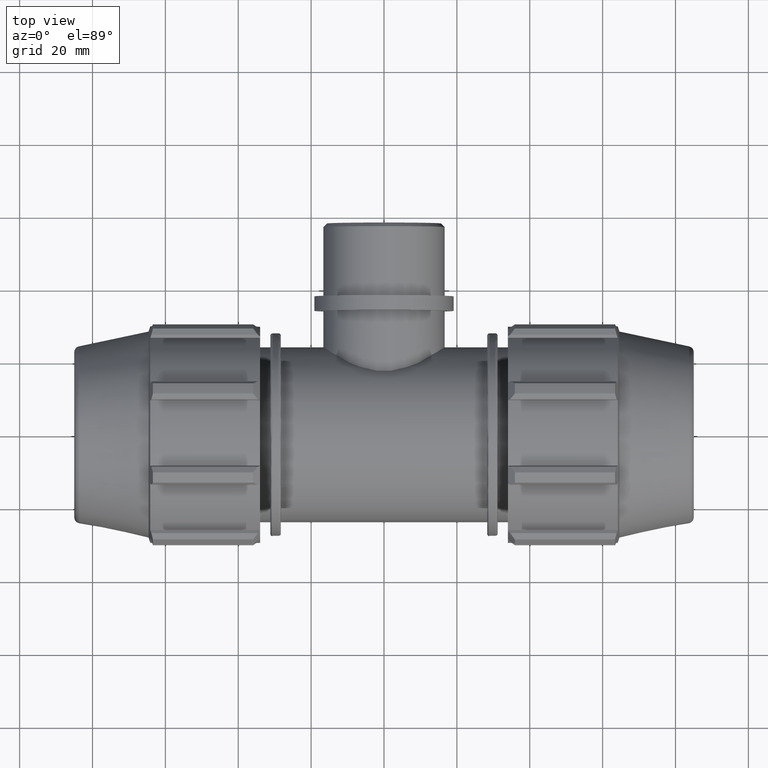
[diagram: clean part render]
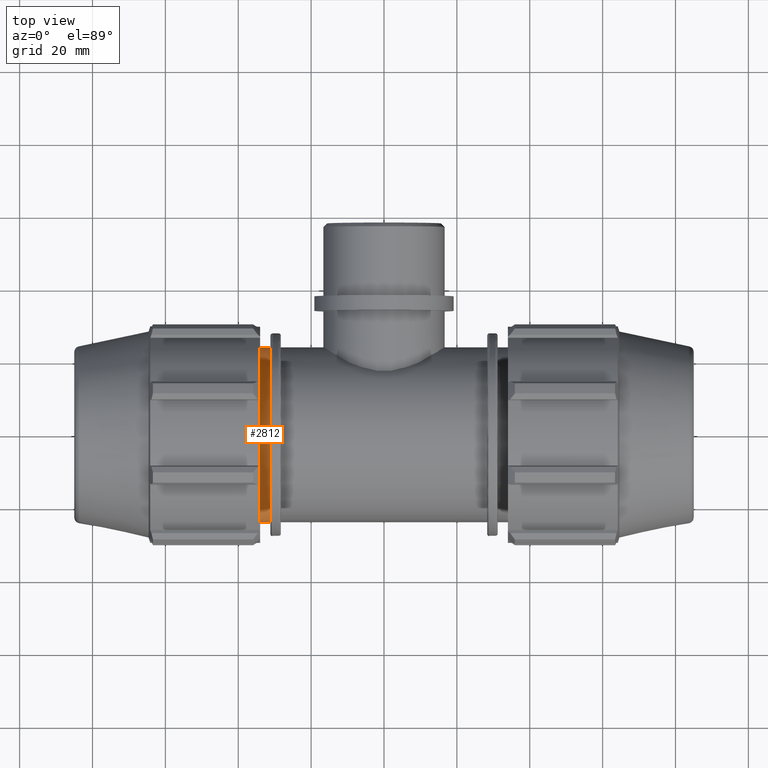
[diagram: same view with one face highlighted and labeled with its STEP entity id]
A machine part, top view. The second image highlights one B-rep face of the part: STEP entity #2812.
In plain terms, the highlighted cylindrical surface (bore or boss wall) has radius 24 mm, axis along (1, -0, 0).
Its self-contained STEP definition (entity closure, byte-faithful):
#183=CIRCLE('',#2922,24.);
#215=CIRCLE('',#2999,24.);
#715=FACE_BOUND('',#991,.T.);
#817=FACE_OUTER_BOUND('',#990,.T.);
#990=EDGE_LOOP('',(#2131));
#991=EDGE_LOOP('',(#2132));
#1151=VERTEX_POINT('',#4110);
#1236=VERTEX_POINT('',#4431);
#1422=EDGE_CURVE('',#1151,#1151,#183,.T.);
#1553=EDGE_CURVE('',#1236,#1236,#215,.T.);
#2131=ORIENTED_EDGE('',*,*,#1422,.T.);
#2132=ORIENTED_EDGE('',*,*,#1553,.F.);
#2554=CYLINDRICAL_SURFACE('',#3029,24.);
#2812=ADVANCED_FACE('',(#817,#715),#2554,.T.);
#2922=AXIS2_PLACEMENT_3D('',#4111,#3241,#3242);
#2999=AXIS2_PLACEMENT_3D('',#4432,#3464,#3465);
#3029=AXIS2_PLACEMENT_3D('',#4477,#3533,#3534);
#3241=DIRECTION('center_axis',(1.,-4.75609664075873E-16,0.));
#3242=DIRECTION('ref_axis',(0.,0.,-1.));
#3464=DIRECTION('center_axis',(1.,-4.75609664075873E-16,0.));
#3465=DIRECTION('ref_axis',(0.,0.,-1.));
#3533=DIRECTION('center_axis',(1.,-4.75609664075873E-16,0.));
#3534=DIRECTION('ref_axis',(0.,1.,0.));
#4110=CARTESIAN_POINT('',(-34.,24.,0.));
#4111=CARTESIAN_POINT('Origin',(-34.,1.61707285785797E-14,0.));
#4431=CARTESIAN_POINT('',(-31.1666666666667,24.,0.));
#4432=CARTESIAN_POINT('Origin',(-31.1666666666667,1.48231678636981E-14,
0.));
#4477=CARTESIAN_POINT('Origin',(-32.5833333333334,1.54969482211389E-14,
0.));